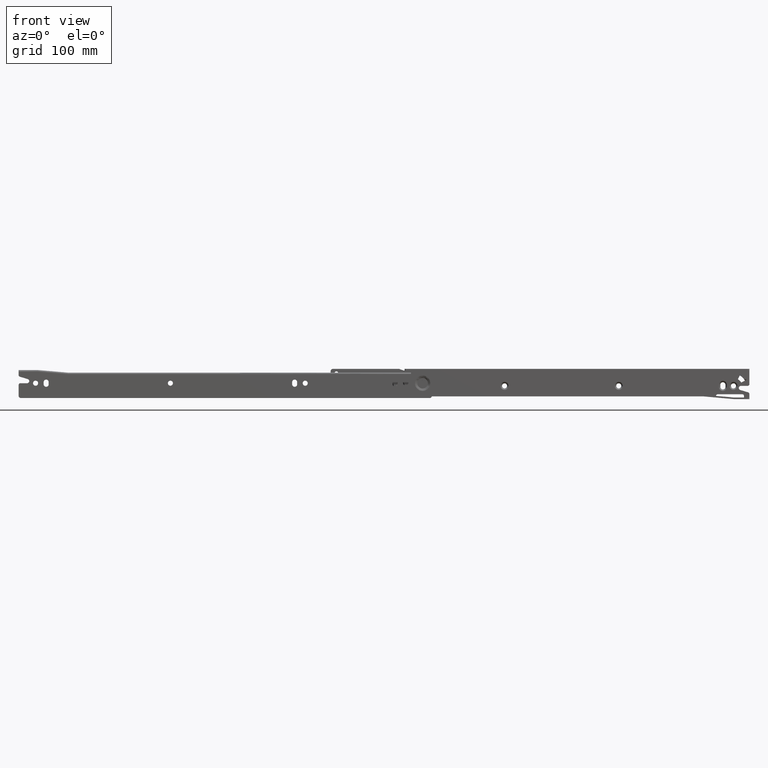
[diagram: clean part render]
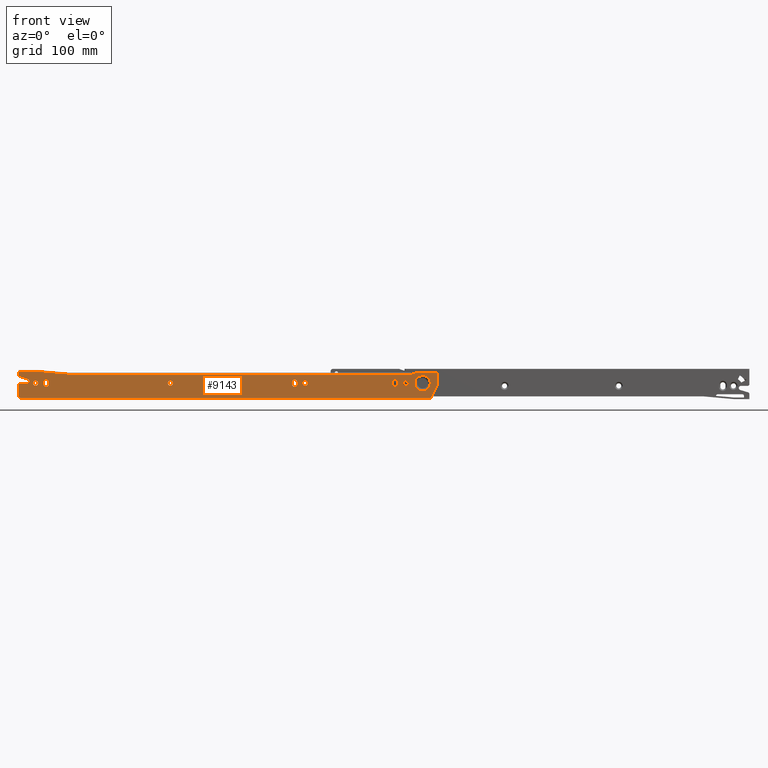
[diagram: same view with one face highlighted and labeled with its STEP entity id]
A machine part, front view. The second image highlights one B-rep face of the part: STEP entity #9143.
In plain terms, the highlighted face is a freeform B-spline surface patch.
Its self-contained STEP definition (entity closure, byte-faithful):
#5292=CARTESIAN_POINT('',(366.0,0.0,16.399999999999999));
#5293=VERTEX_POINT('',#5292);
#5294=CARTESIAN_POINT('',(363.607398397111300,5.708281E-009,14.188301870713740));
#5295=VERTEX_POINT('',#5294);
#5296=CARTESIAN_POINT('',(366.0,0.0,16.399999999999999));
#5297=CARTESIAN_POINT('',(363.781462895478510,0.0,16.400000000000002));
#5298=CARTESIAN_POINT('',(363.607398397111240,5.708281E-009,14.188301870713742));
#5306=(BOUNDED_CURVE()B_SPLINE_CURVE(2,(#5296,#5297,#5298),.UNSPECIFIED.,.F.,.U.)B_SPLINE_CURVE_WITH_KNOTS((3,3),(0.0,0.236331294820154),.UNSPECIFIED.)CURVE()GEOMETRIC_REPRESENTATION_ITEM()RATIONAL_B_SPLINE_CURVE((1.0,0.723120665415097,0.969723344041335))REPRESENTATION_ITEM(''));
#5307=EDGE_CURVE('',#5293,#5295,#5306,.T.);
#5348=CARTESIAN_POINT('',(368.392601602888590,5.708246E-009,13.811698129286270));
#5349=VERTEX_POINT('',#5348);
#5355=CARTESIAN_POINT('',(368.392601602888650,5.708246E-009,13.811698129286272));
#5356=CARTESIAN_POINT('',(368.399999999999980,0.0,13.905703702429523));
#5357=CARTESIAN_POINT('',(368.399999999999980,0.0,14.0));
#5358=CARTESIAN_POINT('',(368.400000000000030,0.0,16.400000000000002));
#5359=CARTESIAN_POINT('',(366.0,0.0,16.399999999999999));
#5367=(BOUNDED_CURVE()B_SPLINE_CURVE(2,(#5355,#5356,#5357,#5358,#5359),.UNSPECIFIED.,.F.,.U.)B_SPLINE_CURVE_WITH_KNOTS((3,2,3),(0.736331294820154,0.750000000000000,1.0),.UNSPECIFIED.)CURVE()GEOMETRIC_REPRESENTATION_ITEM()RATIONAL_B_SPLINE_CURVE((0.969723344041337,0.983986115771452,1.0,0.707106781186547,1.0))REPRESENTATION_ITEM(''));
#5368=EDGE_CURVE('',#5349,#5293,#5367,.T.);
#5391=CARTESIAN_POINT('',(366.0,0.0,11.600000000000000));
#5392=VERTEX_POINT('',#5391);
#5393=CARTESIAN_POINT('',(363.607398397111350,5.708281E-009,14.188301870713738));
#5394=CARTESIAN_POINT('',(363.599999999999910,0.0,14.094296297570486));
#5395=CARTESIAN_POINT('',(363.600000000000020,0.0,14.0));
#5396=CARTESIAN_POINT('',(363.599999999999910,0.0,11.600000000000003));
#5397=CARTESIAN_POINT('',(366.0,0.0,11.600000000000000));
#5405=(BOUNDED_CURVE()B_SPLINE_CURVE(2,(#5393,#5394,#5395,#5396,#5397),.UNSPECIFIED.,.F.,.U.)B_SPLINE_CURVE_WITH_KNOTS((3,2,3),(0.236331294820154,0.250000000000000,0.500000000000000),.UNSPECIFIED.)CURVE()GEOMETRIC_REPRESENTATION_ITEM()RATIONAL_B_SPLINE_CURVE((0.969723344041335,0.983986115771451,1.0,0.707106781186547,1.0))REPRESENTATION_ITEM(''));
#5406=EDGE_CURVE('',#5295,#5392,#5405,.T.);
#5408=CARTESIAN_POINT('',(366.0,0.0,11.600000000000000));
#5409=CARTESIAN_POINT('',(368.218537104521600,0.0,11.600000000000003));
#5410=CARTESIAN_POINT('',(368.392601602888530,5.708246E-009,13.811698129286276));
#5418=(BOUNDED_CURVE()B_SPLINE_CURVE(2,(#5408,#5409,#5410),.UNSPECIFIED.,.F.,.U.)B_SPLINE_CURVE_WITH_KNOTS((3,3),(0.500000000000000,0.736331294820153),.UNSPECIFIED.)CURVE()GEOMETRIC_REPRESENTATION_ITEM()RATIONAL_B_SPLINE_CURVE((1.0,0.723120665415097,0.969723344041335))REPRESENTATION_ITEM(''));
#5419=EDGE_CURVE('',#5392,#5349,#5418,.T.);
#5474=CARTESIAN_POINT('',(271.0,0.0,16.399999999999999));
#5475=VERTEX_POINT('',#5474);
#5476=CARTESIAN_POINT('',(268.607398397111410,5.708246E-009,14.188301870713730));
#5477=VERTEX_POINT('',#5476);
#5478=CARTESIAN_POINT('',(271.0,0.0,16.399999999999999));
#5479=CARTESIAN_POINT('',(268.781462895478400,0.0,16.400000000000002));
#5480=CARTESIAN_POINT('',(268.607398397111300,5.708246E-009,14.188301870713733));
#5488=(BOUNDED_CURVE()B_SPLINE_CURVE(2,(#5478,#5479,#5480),.UNSPECIFIED.,.F.,.U.)B_SPLINE_CURVE_WITH_KNOTS((3,3),(0.0,0.236331294820155),.UNSPECIFIED.)CURVE()GEOMETRIC_REPRESENTATION_ITEM()RATIONAL_B_SPLINE_CURVE((1.0,0.723120665415096,0.969723344041337))REPRESENTATION_ITEM(''));
#5489=EDGE_CURVE('',#5475,#5477,#5488,.T.);
#5530=CARTESIAN_POINT('',(273.392601602888700,5.708270E-009,13.811698129286260));
#5531=VERTEX_POINT('',#5530);
#5537=CARTESIAN_POINT('',(273.392601602888650,5.708270E-009,13.811698129286269));
#5538=CARTESIAN_POINT('',(273.400000000000030,0.0,13.905703702429523));
#5539=CARTESIAN_POINT('',(273.399999999999980,0.0,14.0));
#5540=CARTESIAN_POINT('',(273.400000000000030,0.0,16.400000000000002));
#5541=CARTESIAN_POINT('',(271.0,0.0,16.399999999999999));
#5549=(BOUNDED_CURVE()B_SPLINE_CURVE(2,(#5537,#5538,#5539,#5540,#5541),.UNSPECIFIED.,.F.,.U.)B_SPLINE_CURVE_WITH_KNOTS((3,2,3),(0.736331294820154,0.750000000000000,1.0),.UNSPECIFIED.)CURVE()GEOMETRIC_REPRESENTATION_ITEM()RATIONAL_B_SPLINE_CURVE((0.969723344041336,0.983986115771451,1.0,0.707106781186547,1.0))REPRESENTATION_ITEM(''));
#5550=EDGE_CURVE('',#5531,#5475,#5549,.T.);
#5573=CARTESIAN_POINT('',(271.0,0.0,11.600000000000000));
#5574=VERTEX_POINT('',#5573);
#5575=CARTESIAN_POINT('',(268.607398397111300,5.708246E-009,14.188301870713733));
#5576=CARTESIAN_POINT('',(268.600000000000080,0.0,14.094296297570480));
#5577=CARTESIAN_POINT('',(268.600000000000020,0.0,14.0));
#5578=CARTESIAN_POINT('',(268.600000000000080,0.0,11.600000000000003));
#5579=CARTESIAN_POINT('',(271.0,0.0,11.600000000000000));
#5587=(BOUNDED_CURVE()B_SPLINE_CURVE(2,(#5575,#5576,#5577,#5578,#5579),.UNSPECIFIED.,.F.,.U.)B_SPLINE_CURVE_WITH_KNOTS((3,2,3),(0.236331294820154,0.250000000000000,0.500000000000000),.UNSPECIFIED.)CURVE()GEOMETRIC_REPRESENTATION_ITEM()RATIONAL_B_SPLINE_CURVE((0.969723344041337,0.983986115771452,1.0,0.707106781186547,1.0))REPRESENTATION_ITEM(''));
#5588=EDGE_CURVE('',#5477,#5574,#5587,.T.);
#5590=CARTESIAN_POINT('',(271.0,0.0,11.600000000000000));
#5591=CARTESIAN_POINT('',(273.218537104521600,0.0,11.600000000000003));
#5592=CARTESIAN_POINT('',(273.392601602888700,5.708270E-009,13.811698129286265));
#5600=(BOUNDED_CURVE()B_SPLINE_CURVE(2,(#5590,#5591,#5592),.UNSPECIFIED.,.F.,.U.)B_SPLINE_CURVE_WITH_KNOTS((3,3),(0.500000000000000,0.736331294820153),.UNSPECIFIED.)CURVE()GEOMETRIC_REPRESENTATION_ITEM()RATIONAL_B_SPLINE_CURVE((1.0,0.723120665415097,0.969723344041335))REPRESENTATION_ITEM(''));
#5601=EDGE_CURVE('',#5574,#5531,#5600,.T.);
#5656=CARTESIAN_POINT('',(143.500000000000000,0.0,16.399999999999999));
#5657=VERTEX_POINT('',#5656);
#5658=CARTESIAN_POINT('',(141.107398397111300,5.708276E-009,14.188301870713740));
#5659=VERTEX_POINT('',#5658);
#5660=CARTESIAN_POINT('',(143.500000000000000,0.0,16.399999999999999));
#5661=CARTESIAN_POINT('',(141.281462895478480,0.0,16.400000000000006));
#5662=CARTESIAN_POINT('',(141.107398397111270,5.708276E-009,14.188301870713738));
#5670=(BOUNDED_CURVE()B_SPLINE_CURVE(2,(#5660,#5661,#5662),.UNSPECIFIED.,.F.,.U.)B_SPLINE_CURVE_WITH_KNOTS((3,3),(0.0,0.236331294820154),.UNSPECIFIED.)CURVE()GEOMETRIC_REPRESENTATION_ITEM()RATIONAL_B_SPLINE_CURVE((1.0,0.723120665415097,0.969723344041335))REPRESENTATION_ITEM(''));
#5671=EDGE_CURVE('',#5657,#5659,#5670,.T.);
#5712=CARTESIAN_POINT('',(145.892601602888700,5.708264E-009,13.811698129286270));
#5713=VERTEX_POINT('',#5712);
#5719=CARTESIAN_POINT('',(145.892601602888760,5.708264E-009,13.811698129286269));
#5720=CARTESIAN_POINT('',(145.900000000000060,0.0,13.905703702429527));
#5721=CARTESIAN_POINT('',(145.900000000000010,0.0,14.0));
#5722=CARTESIAN_POINT('',(145.900000000000030,0.0,16.400000000000002));
#5723=CARTESIAN_POINT('',(143.500000000000000,0.0,16.399999999999999));
#5731=(BOUNDED_CURVE()B_SPLINE_CURVE(2,(#5719,#5720,#5721,#5722,#5723),.UNSPECIFIED.,.F.,.U.)B_SPLINE_CURVE_WITH_KNOTS((3,2,3),(0.736331294820154,0.750000000000000,1.0),.UNSPECIFIED.)CURVE()GEOMETRIC_REPRESENTATION_ITEM()RATIONAL_B_SPLINE_CURVE((0.969723344041336,0.983986115771451,1.0,0.707106781186547,1.0))REPRESENTATION_ITEM(''));
#5732=EDGE_CURVE('',#5713,#5657,#5731,.T.);
#5755=CARTESIAN_POINT('',(143.500000000000000,0.0,11.600000000000000));
#5756=VERTEX_POINT('',#5755);
#5757=CARTESIAN_POINT('',(141.107398397111330,5.708276E-009,14.188301870713735));
#5758=CARTESIAN_POINT('',(141.099999999999970,0.0,14.094296297570482));
#5759=CARTESIAN_POINT('',(141.099999999999990,0.0,14.0));
#5760=CARTESIAN_POINT('',(141.099999999999970,0.0,11.600000000000003));
#5761=CARTESIAN_POINT('',(143.500000000000000,0.0,11.600000000000000));
#5769=(BOUNDED_CURVE()B_SPLINE_CURVE(2,(#5757,#5758,#5759,#5760,#5761),.UNSPECIFIED.,.F.,.U.)B_SPLINE_CURVE_WITH_KNOTS((3,2,3),(0.236331294820154,0.250000000000000,0.500000000000000),.UNSPECIFIED.)CURVE()GEOMETRIC_REPRESENTATION_ITEM()RATIONAL_B_SPLINE_CURVE((0.969723344041336,0.983986115771451,1.0,0.707106781186547,1.0))REPRESENTATION_ITEM(''));
#5770=EDGE_CURVE('',#5659,#5756,#5769,.T.);
#5772=CARTESIAN_POINT('',(143.500000000000000,0.0,11.600000000000000));
#5773=CARTESIAN_POINT('',(145.718537104521540,0.0,11.600000000000003));
#5774=CARTESIAN_POINT('',(145.892601602888700,5.708264E-009,13.811698129286265));
#5782=(BOUNDED_CURVE()B_SPLINE_CURVE(2,(#5772,#5773,#5774),.UNSPECIFIED.,.F.,.U.)B_SPLINE_CURVE_WITH_KNOTS((3,3),(0.500000000000000,0.736331294820153),.UNSPECIFIED.)CURVE()GEOMETRIC_REPRESENTATION_ITEM()RATIONAL_B_SPLINE_CURVE((1.0,0.723120665415097,0.969723344041335))REPRESENTATION_ITEM(''));
#5783=EDGE_CURVE('',#5756,#5713,#5782,.T.);
#6240=CARTESIAN_POINT('',(16.0,0.0,16.399999999999999));
#6241=VERTEX_POINT('',#6240);
#6242=CARTESIAN_POINT('',(13.607398397111330,5.708269E-009,14.188301870713740));
#6243=VERTEX_POINT('',#6242);
#6244=CARTESIAN_POINT('',(16.0,0.0,16.399999999999999));
#6245=CARTESIAN_POINT('',(13.781462895478445,0.0,16.399999999999999));
#6246=CARTESIAN_POINT('',(13.607398397111329,5.708269E-009,14.188301870713744));
#6254=(BOUNDED_CURVE()B_SPLINE_CURVE(2,(#6244,#6245,#6246),.UNSPECIFIED.,.F.,.U.)B_SPLINE_CURVE_WITH_KNOTS((3,3),(0.0,0.236331294820154),.UNSPECIFIED.)CURVE()GEOMETRIC_REPRESENTATION_ITEM()RATIONAL_B_SPLINE_CURVE((1.0,0.723120665415096,0.969723344041336))REPRESENTATION_ITEM(''));
#6255=EDGE_CURVE('',#6241,#6243,#6254,.T.);
#6296=CARTESIAN_POINT('',(18.392601602888671,5.708269E-009,13.811698129286260));
#6297=VERTEX_POINT('',#6296);
#6303=CARTESIAN_POINT('',(18.392601602888664,5.708269E-009,13.811698129286263));
#6304=CARTESIAN_POINT('',(18.399999999999999,0.0,13.905703702429520));
#6305=CARTESIAN_POINT('',(18.399999999999999,0.0,14.0));
#6306=CARTESIAN_POINT('',(18.399999999999995,0.0,16.400000000000002));
#6307=CARTESIAN_POINT('',(16.0,0.0,16.399999999999999));
#6315=(BOUNDED_CURVE()B_SPLINE_CURVE(2,(#6303,#6304,#6305,#6306,#6307),.UNSPECIFIED.,.F.,.U.)B_SPLINE_CURVE_WITH_KNOTS((3,2,3),(0.736331294820154,0.750000000000000,1.0),.UNSPECIFIED.)CURVE()GEOMETRIC_REPRESENTATION_ITEM()RATIONAL_B_SPLINE_CURVE((0.969723344041336,0.983986115771451,1.0,0.707106781186547,1.0))REPRESENTATION_ITEM(''));
#6316=EDGE_CURVE('',#6297,#6241,#6315,.T.);
#6339=CARTESIAN_POINT('',(16.0,0.0,11.600000000000000));
#6340=VERTEX_POINT('',#6339);
#6341=CARTESIAN_POINT('',(13.607398397111330,5.708269E-009,14.188301870713733));
#6342=CARTESIAN_POINT('',(13.600000000000009,0.0,14.094296297570482));
#6343=CARTESIAN_POINT('',(13.600000000000000,0.0,14.0));
#6344=CARTESIAN_POINT('',(13.600000000000001,0.0,11.600000000000003));
#6345=CARTESIAN_POINT('',(16.0,0.0,11.600000000000000));
#6353=(BOUNDED_CURVE()B_SPLINE_CURVE(2,(#6341,#6342,#6343,#6344,#6345),.UNSPECIFIED.,.F.,.U.)B_SPLINE_CURVE_WITH_KNOTS((3,2,3),(0.236331294820154,0.250000000000000,0.500000000000000),.UNSPECIFIED.)CURVE()GEOMETRIC_REPRESENTATION_ITEM()RATIONAL_B_SPLINE_CURVE((0.969723344041336,0.983986115771451,1.0,0.707106781186547,1.0))REPRESENTATION_ITEM(''));
#6354=EDGE_CURVE('',#6243,#6340,#6353,.T.);
#6356=CARTESIAN_POINT('',(16.0,0.0,11.600000000000000));
#6357=CARTESIAN_POINT('',(18.218537104521555,0.0,11.600000000000003));
#6358=CARTESIAN_POINT('',(18.392601602888668,5.708269E-009,13.811698129286265));
#6366=(BOUNDED_CURVE()B_SPLINE_CURVE(2,(#6356,#6357,#6358),.UNSPECIFIED.,.F.,.U.)B_SPLINE_CURVE_WITH_KNOTS((3,3),(0.500000000000000,0.736331294820153),.UNSPECIFIED.)CURVE()GEOMETRIC_REPRESENTATION_ITEM()RATIONAL_B_SPLINE_CURVE((1.0,0.723120665415097,0.969723344041335))REPRESENTATION_ITEM(''));
#6367=EDGE_CURVE('',#6340,#6297,#6366,.T.);
#6475=CARTESIAN_POINT('',(376.602319200691110,1.146417E-015,18.819307116848719));
#6476=VERTEX_POINT('',#6475);
#6490=CARTESIAN_POINT('',(382.0,0.0,6.763932022500210));
#6491=VERTEX_POINT('',#6490);
#6492=CARTESIAN_POINT('',(382.0,0.0,6.763932022500210));
#6493=CARTESIAN_POINT('',(374.763932022500110,0.0,6.763932022500212));
#6494=CARTESIAN_POINT('',(374.763932022500230,0.0,14.0));
#6495=CARTESIAN_POINT('',(374.763932022500170,0.0,16.760291870702002));
#6496=CARTESIAN_POINT('',(376.602319200691230,1.146417E-015,18.819307116848719));
#6504=(BOUNDED_CURVE()B_SPLINE_CURVE(2,(#6492,#6493,#6494,#6495,#6496),.UNSPECIFIED.,.F.,.U.)B_SPLINE_CURVE_WITH_KNOTS((3,2,3),(0.500000000000000,0.750000000000000,0.866465190568446),.UNSPECIFIED.)CURVE()GEOMETRIC_REPRESENTATION_ITEM()RATIONAL_B_SPLINE_CURVE((1.0,0.707106781186548,1.0,0.863552541818743,0.854236117394767))REPRESENTATION_ITEM(''));
#6505=EDGE_CURVE('',#6491,#6476,#6504,.T.);
#6507=CARTESIAN_POINT('',(386.163834798710980,1.229599E-015,19.918036738701321));
#6508=VERTEX_POINT('',#6507);
#6509=CARTESIAN_POINT('',(386.163834798711090,1.229599E-015,19.918036738701314));
#6510=CARTESIAN_POINT('',(389.236067977499770,0.0,17.756463288696164));
#6511=CARTESIAN_POINT('',(389.236067977499770,0.0,14.0));
#6512=CARTESIAN_POINT('',(389.236067977499830,0.0,6.763932022500212));
#6513=CARTESIAN_POINT('',(382.0,0.0,6.763932022500210));
#6521=(BOUNDED_CURVE()B_SPLINE_CURVE(2,(#6509,#6510,#6511,#6512,#6513),.UNSPECIFIED.,.F.,.U.)B_SPLINE_CURVE_WITH_KNOTS((3,2,3),(0.098941835654268,0.250000000000000,0.500000000000000),.UNSPECIFIED.)CURVE()GEOMETRIC_REPRESENTATION_ITEM()RATIONAL_B_SPLINE_CURVE((0.859917636219172,0.823024352066908,1.0,0.707106781186548,1.0))REPRESENTATION_ITEM(''));
#6522=EDGE_CURVE('',#6508,#6491,#6521,.T.);
#6573=CARTESIAN_POINT('',(382.0,0.0,21.236067977499790));
#6574=VERTEX_POINT('',#6573);
#6575=CARTESIAN_POINT('',(382.0,0.0,21.236067977499790));
#6576=CARTESIAN_POINT('',(384.290523943328590,0.0,21.236067977499786));
#6577=CARTESIAN_POINT('',(386.163834798710980,1.229599E-015,19.918036738701314));
#6585=(BOUNDED_CURVE()B_SPLINE_CURVE(2,(#6575,#6576,#6577),.UNSPECIFIED.,.F.,.U.)B_SPLINE_CURVE_WITH_KNOTS((3,3),(0.0,0.098941835654268),.UNSPECIFIED.)CURVE()GEOMETRIC_REPRESENTATION_ITEM()RATIONAL_B_SPLINE_CURVE((1.0,0.884082429119639,0.859917636219172))REPRESENTATION_ITEM(''));
#6586=EDGE_CURVE('',#6574,#6508,#6585,.T.);
#6588=CARTESIAN_POINT('',(376.602319200691110,1.146417E-015,18.819307116848723));
#6589=CARTESIAN_POINT('',(378.760118617910280,0.0,21.236067977499786));
#6590=CARTESIAN_POINT('',(382.0,0.0,21.236067977499790));
#6598=(BOUNDED_CURVE()B_SPLINE_CURVE(2,(#6588,#6589,#6590),.UNSPECIFIED.,.F.,.U.)B_SPLINE_CURVE_WITH_KNOTS((3,3),(0.866465190568447,1.0),.UNSPECIFIED.)CURVE()GEOMETRIC_REPRESENTATION_ITEM()RATIONAL_B_SPLINE_CURVE((0.854236117394767,0.843554239367805,1.0))REPRESENTATION_ITEM(''));
#6599=EDGE_CURVE('',#6476,#6574,#6598,.T.);
#6773=CARTESIAN_POINT('',(358.399999999999980,0.0,15.0));
#6774=VERTEX_POINT('',#6773);
#6789=CARTESIAN_POINT('',(358.399999999999980,0.0,12.999999999999799));
#6790=VERTEX_POINT('',#6789);
#6796=CARTESIAN_POINT('',(358.399999999999980,0.0,15.0));
#6797=CARTESIAN_POINT('',(358.399999999999980,0.0,12.999999999999799));
#6798=QUASI_UNIFORM_CURVE('',1,(#6796,#6797),.UNSPECIFIED.,.F.,.U.);
#6799=EDGE_CURVE('',#6774,#6790,#6798,.T.);
#6824=CARTESIAN_POINT('',(353.600000000000020,0.0,12.999999999999799));
#6825=VERTEX_POINT('',#6824);
#6831=CARTESIAN_POINT('',(353.600000000000020,0.0,12.999999999999799));
#6832=CARTESIAN_POINT('',(353.600000000000020,0.0,10.599999999999801));
#6833=CARTESIAN_POINT('',(356.0,0.0,10.599999999999801));
#6834=CARTESIAN_POINT('',(358.399999999999980,0.0,10.599999999999801));
#6835=CARTESIAN_POINT('',(358.399999999999980,0.0,12.999999999999799));
#6843=(BOUNDED_CURVE()B_SPLINE_CURVE(2,(#6831,#6832,#6833,#6834,#6835),.UNSPECIFIED.,.F.,.U.)B_SPLINE_CURVE_WITH_KNOTS((3,2,3),(0.0,0.500000000000000,1.0),.UNSPECIFIED.)CURVE()GEOMETRIC_REPRESENTATION_ITEM()RATIONAL_B_SPLINE_CURVE((1.0,0.707106781186547,1.0,0.707106781186547,1.0))REPRESENTATION_ITEM(''));
#6844=EDGE_CURVE('',#6825,#6790,#6843,.T.);
#6883=CARTESIAN_POINT('',(353.600000000000020,0.0,15.0));
#6884=VERTEX_POINT('',#6883);
#6908=CARTESIAN_POINT('',(358.399999999999980,0.0,15.0));
#6909=CARTESIAN_POINT('',(358.399999999999980,0.0,17.399999999999991));
#6910=CARTESIAN_POINT('',(356.0,0.0,17.399999999999999));
#6911=CARTESIAN_POINT('',(353.600000000000020,0.0,17.399999999999991));
#6912=CARTESIAN_POINT('',(353.600000000000020,0.0,15.0));
#6920=(BOUNDED_CURVE()B_SPLINE_CURVE(2,(#6908,#6909,#6910,#6911,#6912),.UNSPECIFIED.,.F.,.U.)B_SPLINE_CURVE_WITH_KNOTS((3,2,3),(0.0,0.500000000000000,1.0),.UNSPECIFIED.)CURVE()GEOMETRIC_REPRESENTATION_ITEM()RATIONAL_B_SPLINE_CURVE((1.0,0.707106781186547,1.0,0.707106781186547,1.0))REPRESENTATION_ITEM(''));
#6921=EDGE_CURVE('',#6774,#6884,#6920,.T.);
#6938=CARTESIAN_POINT('',(353.600000000000020,0.0,12.999999999999799));
#6939=CARTESIAN_POINT('',(353.600000000000020,0.0,15.0));
#6940=QUASI_UNIFORM_CURVE('',1,(#6938,#6939),.UNSPECIFIED.,.F.,.U.);
#6941=EDGE_CURVE('',#6825,#6884,#6940,.T.);
#6951=CARTESIAN_POINT('',(263.399999999999980,0.0,15.0));
#6952=VERTEX_POINT('',#6951);
#6967=CARTESIAN_POINT('',(263.399999999999980,0.0,12.999999999999799));
#6968=VERTEX_POINT('',#6967);
#6974=CARTESIAN_POINT('',(263.399999999999980,0.0,15.0));
#6975=CARTESIAN_POINT('',(263.399999999999980,0.0,12.999999999999799));
#6976=QUASI_UNIFORM_CURVE('',1,(#6974,#6975),.UNSPECIFIED.,.F.,.U.);
#6977=EDGE_CURVE('',#6952,#6968,#6976,.T.);
#7002=CARTESIAN_POINT('',(258.600000000000020,0.0,12.999999999999799));
#7003=VERTEX_POINT('',#7002);
#7009=CARTESIAN_POINT('',(258.600000000000020,0.0,12.999999999999799));
#7010=CARTESIAN_POINT('',(258.600000000000020,0.0,10.599999999999801));
#7011=CARTESIAN_POINT('',(261.0,0.0,10.599999999999801));
#7012=CARTESIAN_POINT('',(263.399999999999980,0.0,10.599999999999801));
#7013=CARTESIAN_POINT('',(263.399999999999980,0.0,12.999999999999799));
#7021=(BOUNDED_CURVE()B_SPLINE_CURVE(2,(#7009,#7010,#7011,#7012,#7013),.UNSPECIFIED.,.F.,.U.)B_SPLINE_CURVE_WITH_KNOTS((3,2,3),(0.0,0.500000000000000,1.0),.UNSPECIFIED.)CURVE()GEOMETRIC_REPRESENTATION_ITEM()RATIONAL_B_SPLINE_CURVE((1.0,0.707106781186547,1.0,0.707106781186547,1.0))REPRESENTATION_ITEM(''));
#7022=EDGE_CURVE('',#7003,#6968,#7021,.T.);
#7061=CARTESIAN_POINT('',(258.600000000000020,0.0,15.0));
#7062=VERTEX_POINT('',#7061);
#7086=CARTESIAN_POINT('',(263.399999999999980,0.0,15.0));
#7087=CARTESIAN_POINT('',(263.399999999999980,0.0,17.399999999999991));
#7088=CARTESIAN_POINT('',(261.0,0.0,17.399999999999999));
#7089=CARTESIAN_POINT('',(258.600000000000020,0.0,17.399999999999991));
#7090=CARTESIAN_POINT('',(258.600000000000020,0.0,15.0));
#7098=(BOUNDED_CURVE()B_SPLINE_CURVE(2,(#7086,#7087,#7088,#7089,#7090),.UNSPECIFIED.,.F.,.U.)B_SPLINE_CURVE_WITH_KNOTS((3,2,3),(0.0,0.500000000000000,1.0),.UNSPECIFIED.)CURVE()GEOMETRIC_REPRESENTATION_ITEM()RATIONAL_B_SPLINE_CURVE((1.0,0.707106781186547,1.0,0.707106781186547,1.0))REPRESENTATION_ITEM(''));
#7099=EDGE_CURVE('',#6952,#7062,#7098,.T.);
#7116=CARTESIAN_POINT('',(258.600000000000020,0.0,12.999999999999799));
#7117=CARTESIAN_POINT('',(258.600000000000020,0.0,15.0));
#7118=QUASI_UNIFORM_CURVE('',1,(#7116,#7117),.UNSPECIFIED.,.F.,.U.);
#7119=EDGE_CURVE('',#7003,#7062,#7118,.T.);
#7674=CARTESIAN_POINT('',(396.0,0.0,22.0));
#7675=VERTEX_POINT('',#7674);
#7676=CARTESIAN_POINT('',(394.0,0.0,24.0));
#7677=VERTEX_POINT('',#7676);
#7678=CARTESIAN_POINT('',(396.0,0.0,22.0));
#7679=CARTESIAN_POINT('',(395.999999999999940,0.0,23.999999999999996));
#7680=CARTESIAN_POINT('',(394.0,0.0,24.0));
#7688=(BOUNDED_CURVE()B_SPLINE_CURVE(2,(#7678,#7679,#7680),.UNSPECIFIED.,.F.,.U.)CURVE()GEOMETRIC_REPRESENTATION_ITEM()QUASI_UNIFORM_CURVE()RATIONAL_B_SPLINE_CURVE((1.0,0.707106781186548,1.0))REPRESENTATION_ITEM(''));
#7689=EDGE_CURVE('',#7675,#7677,#7688,.T.);
#7726=CARTESIAN_POINT('',(396.0,0.0,11.999999999999799));
#7727=VERTEX_POINT('',#7726);
#7728=CARTESIAN_POINT('',(396.0,0.0,11.999999999999799));
#7729=CARTESIAN_POINT('',(396.0,0.0,22.0));
#7730=QUASI_UNIFORM_CURVE('',1,(#7728,#7729),.UNSPECIFIED.,.F.,.U.);
#7731=EDGE_CURVE('',#7727,#7675,#7730,.T.);
#7754=CARTESIAN_POINT('',(390.552786384763980,0.0,1.105572814528704));
#7755=VERTEX_POINT('',#7754);
#7756=CARTESIAN_POINT('',(390.552786384763980,0.0,1.105572814528704));
#7757=CARTESIAN_POINT('',(396.0,0.0,11.999999999999799));
#7758=QUASI_UNIFORM_CURVE('',1,(#7756,#7757),.UNSPECIFIED.,.F.,.U.);
#7759=EDGE_CURVE('',#7755,#7727,#7758,.T.);
#7791=CARTESIAN_POINT('',(388.763932000000010,0.0,0.0));
#7792=VERTEX_POINT('',#7791);
#7793=CARTESIAN_POINT('',(388.763932000000010,0.0,0.0));
#7794=CARTESIAN_POINT('',(389.999999981770880,0.0,0.0));
#7795=CARTESIAN_POINT('',(390.552786384764090,0.0,1.105572814528649));
#7803=(BOUNDED_CURVE()B_SPLINE_CURVE(2,(#7793,#7794,#7795),.UNSPECIFIED.,.F.,.U.)CURVE()GEOMETRIC_REPRESENTATION_ITEM()QUASI_UNIFORM_CURVE()RATIONAL_B_SPLINE_CURVE((1.0,0.850650807539638,1.0))REPRESENTATION_ITEM(''));
#7804=EDGE_CURVE('',#7792,#7755,#7803,.T.);
#7835=CARTESIAN_POINT('',(372.0,0.0,22.500000000000000));
#7836=VERTEX_POINT('',#7835);
#7837=CARTESIAN_POINT('',(371.0,0.0,22.500000000000000));
#7838=VERTEX_POINT('',#7837);
#7839=CARTESIAN_POINT('',(372.0,0.0,22.500000000000000));
#7840=CARTESIAN_POINT('',(371.0,0.0,22.500000000000000));
#7841=QUASI_UNIFORM_CURVE('',1,(#7839,#7840),.UNSPECIFIED.,.F.,.U.);
#7842=EDGE_CURVE('',#7836,#7838,#7841,.T.);
#7871=CARTESIAN_POINT('',(376.0,0.0,24.0));
#7872=VERTEX_POINT('',#7871);
#7873=CARTESIAN_POINT('',(376.0,0.0,24.0));
#7874=CARTESIAN_POINT('',(372.0,0.0,22.500000000000000));
#7875=QUASI_UNIFORM_CURVE('',1,(#7873,#7874),.UNSPECIFIED.,.F.,.U.);
#7876=EDGE_CURVE('',#7872,#7836,#7875,.T.);
#7899=CARTESIAN_POINT('',(394.0,0.0,24.0));
#7900=CARTESIAN_POINT('',(376.0,0.0,24.0));
#7901=QUASI_UNIFORM_CURVE('',1,(#7899,#7900),.UNSPECIFIED.,.F.,.U.);
#7902=EDGE_CURVE('',#7677,#7872,#7901,.T.);
#7921=CARTESIAN_POINT('',(23.600000000000001,0.0,15.0));
#7922=VERTEX_POINT('',#7921);
#7928=CARTESIAN_POINT('',(23.600000000000001,0.0,12.999999999999799));
#7929=VERTEX_POINT('',#7928);
#7930=CARTESIAN_POINT('',(23.600000000000001,0.0,15.0));
#7931=CARTESIAN_POINT('',(23.600000000000001,0.0,12.999999999999799));
#7932=QUASI_UNIFORM_CURVE('',1,(#7930,#7931),.UNSPECIFIED.,.F.,.U.);
#7933=EDGE_CURVE('',#7922,#7929,#7932,.T.);
#7968=CARTESIAN_POINT('',(28.399999999999999,0.0,12.999999999999799));
#7969=VERTEX_POINT('',#7968);
#7993=CARTESIAN_POINT('',(23.600000000000001,0.0,12.999999999999799));
#7994=CARTESIAN_POINT('',(23.600000000000001,0.0,10.599999999999801));
#7995=CARTESIAN_POINT('',(26.0,0.0,10.599999999999801));
#7996=CARTESIAN_POINT('',(28.400000000000002,0.0,10.599999999999801));
#7997=CARTESIAN_POINT('',(28.399999999999999,0.0,12.999999999999799));
#8005=(BOUNDED_CURVE()B_SPLINE_CURVE(2,(#7993,#7994,#7995,#7996,#7997),.UNSPECIFIED.,.F.,.U.)B_SPLINE_CURVE_WITH_KNOTS((3,2,3),(0.0,0.500000000000000,1.0),.UNSPECIFIED.)CURVE()GEOMETRIC_REPRESENTATION_ITEM()RATIONAL_B_SPLINE_CURVE((1.0,0.707106781186547,1.0,0.707106781186547,1.0))REPRESENTATION_ITEM(''));
#8006=EDGE_CURVE('',#7929,#7969,#8005,.T.);
#8031=CARTESIAN_POINT('',(28.399999999999999,0.0,15.0));
#8032=VERTEX_POINT('',#8031);
#8038=CARTESIAN_POINT('',(28.399999999999999,0.0,15.0));
#8039=CARTESIAN_POINT('',(28.400000000000002,0.0,17.399999999999991));
#8040=CARTESIAN_POINT('',(26.0,0.0,17.399999999999999));
#8041=CARTESIAN_POINT('',(23.600000000000001,0.0,17.399999999999991));
#8042=CARTESIAN_POINT('',(23.600000000000001,0.0,15.0));
#8050=(BOUNDED_CURVE()B_SPLINE_CURVE(2,(#8038,#8039,#8040,#8041,#8042),.UNSPECIFIED.,.F.,.U.)B_SPLINE_CURVE_WITH_KNOTS((3,2,3),(0.0,0.500000000000000,1.0),.UNSPECIFIED.)CURVE()GEOMETRIC_REPRESENTATION_ITEM()RATIONAL_B_SPLINE_CURVE((1.0,0.707106781186547,1.0,0.707106781186547,1.0))REPRESENTATION_ITEM(''));
#8051=EDGE_CURVE('',#8032,#7922,#8050,.T.);
#8078=CARTESIAN_POINT('',(28.399999999999999,0.0,12.999999999999799));
#8079=CARTESIAN_POINT('',(28.399999999999999,0.0,15.0));
#8080=QUASI_UNIFORM_CURVE('',1,(#8078,#8079),.UNSPECIFIED.,.F.,.U.);
#8081=EDGE_CURVE('',#7969,#8032,#8080,.T.);
#8342=CARTESIAN_POINT('',(46.935464506606500,0.0,22.500000000000000));
#8343=VERTEX_POINT('',#8342);
#8357=CARTESIAN_POINT('',(371.0,0.0,22.500000000000000));
#8358=CARTESIAN_POINT('',(46.935464506606500,0.0,22.500000000000000));
#8359=QUASI_UNIFORM_CURVE('',1,(#8357,#8358),.UNSPECIFIED.,.F.,.U.);
#8360=EDGE_CURVE('',#7838,#8343,#8359,.T.);
#8381=CARTESIAN_POINT('',(17.935464506606550,0.0,25.0));
#8382=VERTEX_POINT('',#8381);
#8398=CARTESIAN_POINT('',(46.935464506606500,0.0,22.500000000000000));
#8399=CARTESIAN_POINT('',(17.935464506606550,0.0,25.0));
#8400=QUASI_UNIFORM_CURVE('',1,(#8398,#8399),.UNSPECIFIED.,.F.,.U.);
#8401=EDGE_CURVE('',#8343,#8382,#8400,.T.);
#8431=CARTESIAN_POINT('',(0.0,0.0,25.0));
#8432=VERTEX_POINT('',#8431);
#8448=CARTESIAN_POINT('',(17.935464506606550,0.0,25.0));
#8449=CARTESIAN_POINT('',(0.0,0.0,25.0));
#8450=QUASI_UNIFORM_CURVE('',1,(#8448,#8449),.UNSPECIFIED.,.F.,.U.);
#8451=EDGE_CURVE('',#8382,#8432,#8450,.T.);
#8539=CARTESIAN_POINT('',(-9.947598E-014,0.0,12.500000000000000));
#8540=VERTEX_POINT('',#8539);
#8541=CARTESIAN_POINT('',(0.0,0.0,2.0));
#8542=VERTEX_POINT('',#8541);
#8543=CARTESIAN_POINT('',(-9.947598E-014,0.0,12.500000000000000));
#8544=CARTESIAN_POINT('',(0.0,0.0,2.0));
#8545=QUASI_UNIFORM_CURVE('',1,(#8543,#8544),.UNSPECIFIED.,.F.,.U.);
#8546=EDGE_CURVE('',#8540,#8542,#8545,.T.);
#8584=CARTESIAN_POINT('',(1.499999999999900,0.0,14.0));
#8585=VERTEX_POINT('',#8584);
#8586=CARTESIAN_POINT('',(1.499999999999900,0.0,14.0));
#8587=CARTESIAN_POINT('',(-9.996344E-014,0.0,13.999999999999998));
#8588=CARTESIAN_POINT('',(-9.996344E-014,0.0,12.500000000000000));
#8596=(BOUNDED_CURVE()B_SPLINE_CURVE(2,(#8586,#8587,#8588),.UNSPECIFIED.,.F.,.U.)CURVE()GEOMETRIC_REPRESENTATION_ITEM()QUASI_UNIFORM_CURVE()RATIONAL_B_SPLINE_CURVE((1.0,0.707106781186548,1.0))REPRESENTATION_ITEM(''));
#8597=EDGE_CURVE('',#8585,#8540,#8596,.T.);
#8628=CARTESIAN_POINT('',(8.0,0.0,14.0));
#8629=VERTEX_POINT('',#8628);
#8630=CARTESIAN_POINT('',(8.0,0.0,14.0));
#8631=CARTESIAN_POINT('',(1.499999999999900,0.0,14.0));
#8632=QUASI_UNIFORM_CURVE('',1,(#8630,#8631),.UNSPECIFIED.,.F.,.U.);
#8633=EDGE_CURVE('',#8629,#8585,#8632,.T.);
#8669=CARTESIAN_POINT('',(8.577140990482000,0.0,17.914917302941699));
#8670=VERTEX_POINT('',#8669);
#8671=CARTESIAN_POINT('',(8.0,0.0,14.0));
#8672=CARTESIAN_POINT('',(9.726774151399797,0.0,14.000000000000005));
#8673=CARTESIAN_POINT('',(9.978614996137875,0.0,15.708310615451451));
#8674=CARTESIAN_POINT('',(10.230455840875955,0.0,17.416621230902891));
#8675=CARTESIAN_POINT('',(8.577140990481997,0.0,17.914917302941689));
#8683=(BOUNDED_CURVE()B_SPLINE_CURVE(2,(#8671,#8672,#8673,#8674,#8675),.UNSPECIFIED.,.F.,.U.)B_SPLINE_CURVE_WITH_KNOTS((3,2,3),(0.0,0.500000000000000,1.0),.UNSPECIFIED.)CURVE()GEOMETRIC_REPRESENTATION_ITEM()RATIONAL_B_SPLINE_CURVE((1.0,0.756916340249792,1.0,0.756916340249792,1.0))REPRESENTATION_ITEM(''));
#8684=EDGE_CURVE('',#8629,#8670,#8683,.T.);
#8717=CARTESIAN_POINT('',(1.067144257138398,0.0,20.178371022793751));
#8718=VERTEX_POINT('',#8717);
#8719=CARTESIAN_POINT('',(1.067144257138398,0.0,20.178371022793751));
#8720=CARTESIAN_POINT('',(8.577140990482000,0.0,17.914917302941699));
#8721=QUASI_UNIFORM_CURVE('',1,(#8719,#8720),.UNSPECIFIED.,.F.,.U.);
#8722=EDGE_CURVE('',#8718,#8670,#8721,.T.);
#8754=CARTESIAN_POINT('',(0.0,0.0,21.614559000000000));
#8755=VERTEX_POINT('',#8754);
#8756=CARTESIAN_POINT('',(0.0,0.0,21.614559000000000));
#8757=CARTESIAN_POINT('',(-9.996344E-014,0.0,20.499999895542427));
#8758=CARTESIAN_POINT('',(1.067144257138394,0.0,20.178371022793741));
#8766=(BOUNDED_CURVE()B_SPLINE_CURVE(2,(#8756,#8757,#8758),.UNSPECIFIED.,.F.,.U.)CURVE()GEOMETRIC_REPRESENTATION_ITEM()QUASI_UNIFORM_CURVE()RATIONAL_B_SPLINE_CURVE((1.0,0.802673811470452,1.0))REPRESENTATION_ITEM(''));
#8767=EDGE_CURVE('',#8755,#8718,#8766,.T.);
#8811=CARTESIAN_POINT('',(0.0,0.0,25.0));
#8812=CARTESIAN_POINT('',(0.0,0.0,21.614559000000000));
#8813=QUASI_UNIFORM_CURVE('',1,(#8811,#8812),.UNSPECIFIED.,.F.,.U.);
#8814=EDGE_CURVE('',#8432,#8755,#8813,.T.);
#8876=CARTESIAN_POINT('',(2.0,0.0,0.0));
#8877=VERTEX_POINT('',#8876);
#8878=CARTESIAN_POINT('',(2.0,0.0,0.0));
#8879=CARTESIAN_POINT('',(388.763932000000010,0.0,0.0));
#8880=QUASI_UNIFORM_CURVE('',1,(#8878,#8879),.UNSPECIFIED.,.F.,.U.);
#8881=EDGE_CURVE('',#8877,#7792,#8880,.T.);
#8913=CARTESIAN_POINT('',(0.0,0.0,2.0));
#8914=CARTESIAN_POINT('',(0.0,0.0,0.0));
#8915=CARTESIAN_POINT('',(2.0,0.0,0.0));
#8923=(BOUNDED_CURVE()B_SPLINE_CURVE(2,(#8913,#8914,#8915),.UNSPECIFIED.,.F.,.U.)CURVE()GEOMETRIC_REPRESENTATION_ITEM()QUASI_UNIFORM_CURVE()RATIONAL_B_SPLINE_CURVE((1.0,0.707106781186548,1.0))REPRESENTATION_ITEM(''));
#8924=EDGE_CURVE('',#8542,#8877,#8923,.T.);
#9069=CARTESIAN_POINT('',(-19.780199232475240,0.0,26.248749951545140));
#9070=CARTESIAN_POINT('',(415.780209854022930,0.0,26.248749951545140));
#9071=CARTESIAN_POINT('',(-19.780199232475240,0.0,-1.248750622097399));
#9072=CARTESIAN_POINT('',(415.780209854022930,0.0,-1.248750622097399));
#9073=B_SPLINE_SURFACE_WITH_KNOTS('',1,1,((#9069,#9071),(#9070,#9072)),.UNSPECIFIED.,.F.,.F.,.U.,(2,2),(2,2),(0.0,435.560409086498230),(0.0,27.497500573642540),.UNSPECIFIED.);
#9074=ORIENTED_EDGE('',*,*,#8881,.T.);
#9075=ORIENTED_EDGE('',*,*,#7804,.T.);
#9076=ORIENTED_EDGE('',*,*,#7759,.T.);
#9077=ORIENTED_EDGE('',*,*,#7731,.T.);
#9078=ORIENTED_EDGE('',*,*,#7689,.T.);
#9079=ORIENTED_EDGE('',*,*,#7902,.T.);
#9080=ORIENTED_EDGE('',*,*,#7876,.T.);
#9081=ORIENTED_EDGE('',*,*,#7842,.T.);
#9082=ORIENTED_EDGE('',*,*,#8360,.T.);
#9083=ORIENTED_EDGE('',*,*,#8401,.T.);
#9084=ORIENTED_EDGE('',*,*,#8451,.T.);
#9085=ORIENTED_EDGE('',*,*,#8814,.T.);
#9086=ORIENTED_EDGE('',*,*,#8767,.T.);
#9087=ORIENTED_EDGE('',*,*,#8722,.T.);
#9088=ORIENTED_EDGE('',*,*,#8684,.F.);
#9089=ORIENTED_EDGE('',*,*,#8633,.T.);
#9090=ORIENTED_EDGE('',*,*,#8597,.T.);
#9091=ORIENTED_EDGE('',*,*,#8546,.T.);
#9092=ORIENTED_EDGE('',*,*,#8924,.T.);
#9093=EDGE_LOOP('',(#9074,#9075,#9076,#9077,#9078,#9079,#9080,#9081,#9082,#9083,#9084,#9085,#9086,#9087,#9088,#9089,#9090,#9091,#9092));
#9094=FACE_OUTER_BOUND('',#9093,.T.);
#9095=ORIENTED_EDGE('',*,*,#6844,.F.);
#9096=ORIENTED_EDGE('',*,*,#6941,.T.);
#9097=ORIENTED_EDGE('',*,*,#6921,.F.);
#9098=ORIENTED_EDGE('',*,*,#6799,.T.);
#9099=EDGE_LOOP('',(#9095,#9096,#9097,#9098));
#9100=FACE_BOUND('',#9099,.T.);
#9101=ORIENTED_EDGE('',*,*,#8006,.F.);
#9102=ORIENTED_EDGE('',*,*,#7933,.F.);
#9103=ORIENTED_EDGE('',*,*,#8051,.F.);
#9104=ORIENTED_EDGE('',*,*,#8081,.F.);
#9105=EDGE_LOOP('',(#9101,#9102,#9103,#9104));
#9106=FACE_BOUND('',#9105,.T.);
#9107=ORIENTED_EDGE('',*,*,#7022,.F.);
#9108=ORIENTED_EDGE('',*,*,#7119,.T.);
#9109=ORIENTED_EDGE('',*,*,#7099,.F.);
#9110=ORIENTED_EDGE('',*,*,#6977,.T.);
#9111=EDGE_LOOP('',(#9107,#9108,#9109,#9110));
#9112=FACE_BOUND('',#9111,.T.);
#9113=ORIENTED_EDGE('',*,*,#6505,.T.);
#9114=ORIENTED_EDGE('',*,*,#6599,.T.);
#9115=ORIENTED_EDGE('',*,*,#6586,.T.);
#9116=ORIENTED_EDGE('',*,*,#6522,.T.);
#9117=EDGE_LOOP('',(#9113,#9114,#9115,#9116));
#9118=FACE_BOUND('',#9117,.T.);
#9119=ORIENTED_EDGE('',*,*,#6367,.F.);
#9120=ORIENTED_EDGE('',*,*,#6354,.F.);
#9121=ORIENTED_EDGE('',*,*,#6255,.F.);
#9122=ORIENTED_EDGE('',*,*,#6316,.F.);
#9123=EDGE_LOOP('',(#9119,#9120,#9121,#9122));
#9124=FACE_BOUND('',#9123,.T.);
#9125=ORIENTED_EDGE('',*,*,#5783,.F.);
#9126=ORIENTED_EDGE('',*,*,#5770,.F.);
#9127=ORIENTED_EDGE('',*,*,#5671,.F.);
#9128=ORIENTED_EDGE('',*,*,#5732,.F.);
#9129=EDGE_LOOP('',(#9125,#9126,#9127,#9128));
#9130=FACE_BOUND('',#9129,.T.);
#9131=ORIENTED_EDGE('',*,*,#5601,.F.);
#9132=ORIENTED_EDGE('',*,*,#5588,.F.);
#9133=ORIENTED_EDGE('',*,*,#5489,.F.);
#9134=ORIENTED_EDGE('',*,*,#5550,.F.);
#9135=EDGE_LOOP('',(#9131,#9132,#9133,#9134));
#9136=FACE_BOUND('',#9135,.T.);
#9137=ORIENTED_EDGE('',*,*,#5419,.F.);
#9138=ORIENTED_EDGE('',*,*,#5406,.F.);
#9139=ORIENTED_EDGE('',*,*,#5307,.F.);
#9140=ORIENTED_EDGE('',*,*,#5368,.F.);
#9141=EDGE_LOOP('',(#9137,#9138,#9139,#9140));
#9142=FACE_BOUND('',#9141,.T.);
#9143=ADVANCED_FACE('',(#9094,#9100,#9106,#9112,#9118,#9124,#9130,#9136,#9142),#9073,.F.);